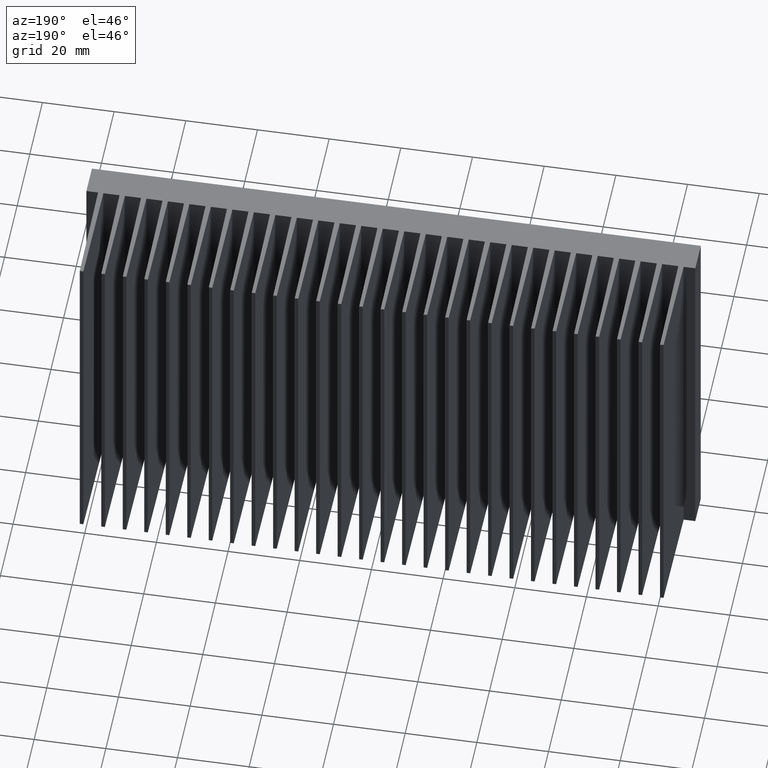
[diagram: clean part render]
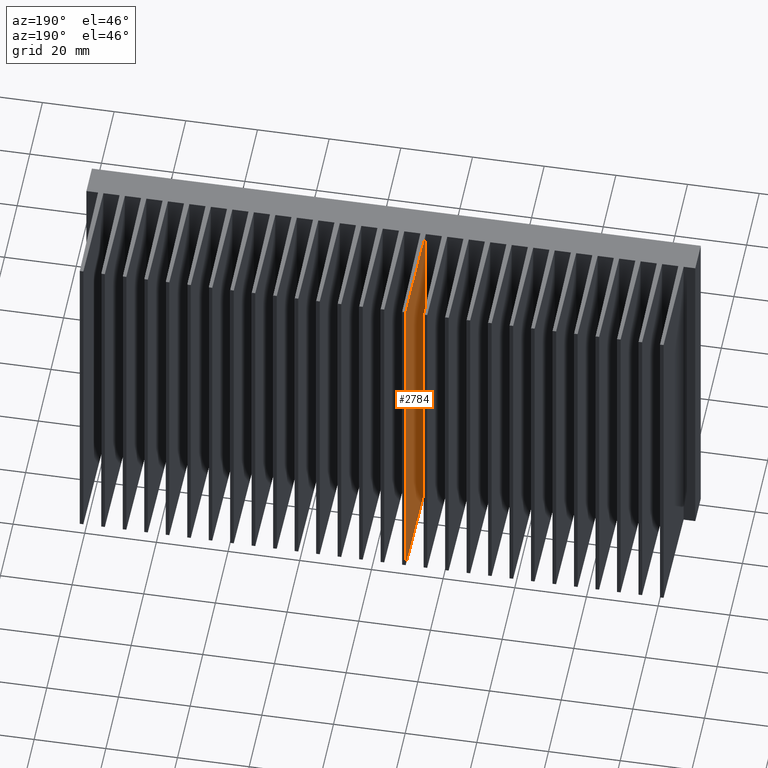
[diagram: same view with one face highlighted and labeled with its STEP entity id]
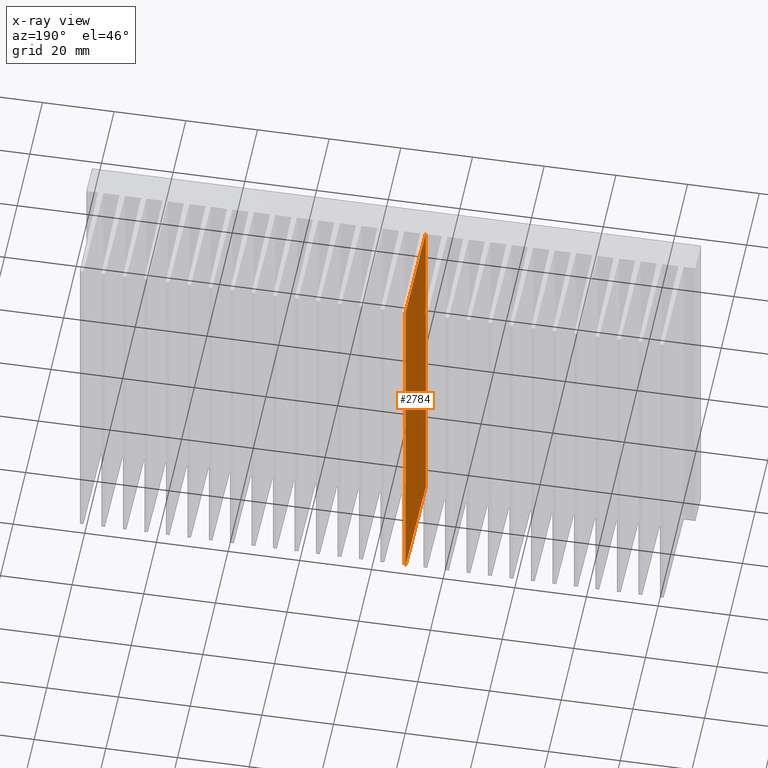
[diagram: x-ray of the same camera — body ghosted, the highlighted face saturated]
A machine part, auxiliary view. The second image highlights one B-rep face of the part: STEP entity #2784.
The next image is the same camera in x-ray: the body ghosted, the highlighted face saturated — about 9% of this face is hidden behind the body in this view.
In plain terms, the highlighted planar face has unit normal (1, -0.0082, 0).
Its self-contained STEP definition (entity closure, byte-faithful):
#143 = PLANE ( 'NONE',  #3297 ) ;
#217 = VERTEX_POINT ( 'NONE', #1792 ) ;
#405 = DIRECTION ( 'NONE',  ( 0.008223406144917910082, 0.9999661872240360738, 0.0000000000000000000 ) ) ;
#562 = DIRECTION ( 'NONE',  ( -0.008223406144917910082, -0.9999661872240359628, 0.0000000000000000000 ) ) ;
#574 = DIRECTION ( 'NONE',  ( 0.9999661872240360738, -0.008223406144917910082, 0.0000000000000000000 ) ) ;
#619 = CARTESIAN_POINT ( 'NONE',  ( -9.493920000000795056, 19.56251200000005852, 100.0000000000000000 ) ) ;
#822 = EDGE_CURVE ( 'NONE', #217, #3837, #2074, .T. ) ;
#929 = CARTESIAN_POINT ( 'NONE',  ( -9.493920000000795056, 19.56251200000005852, 0.0000000000000000000 ) ) ;
#934 = ORIENTED_EDGE ( 'NONE', *, *, #3273, .T. ) ;
#969 = CARTESIAN_POINT ( 'NONE',  ( -9.493920000000795056, 19.56251200000005852, 100.0000000000000000 ) ) ;
#986 = DIRECTION ( 'NONE',  ( -0.008223406144917910082, -0.9999661872240359628, 0.0000000000000000000 ) ) ;
#987 = CARTESIAN_POINT ( 'NONE',  ( -9.743760000000287747, -10.81803199999958487, 100.0000000000000000 ) ) ;
#1277 = ORIENTED_EDGE ( 'NONE', *, *, #1621, .F. ) ;
#1575 = ORIENTED_EDGE ( 'NONE', *, *, #822, .T. ) ;
#1621 = EDGE_CURVE ( 'NONE', #217, #3333, #1722, .T. ) ;
#1722 = LINE ( 'NONE', #619, #1725 ) ;
#1725 = VECTOR ( 'NONE', #562, 1000.000000000000114 ) ;
#1780 = LINE ( 'NONE', #929, #1843 ) ;
#1792 = CARTESIAN_POINT ( 'NONE',  ( -9.493920000000795056, 19.56251200000005852, 100.0000000000000000 ) ) ;
#1843 = VECTOR ( 'NONE', #986, 1000.000000000000114 ) ;
#2074 = LINE ( 'NONE', #969, #2833 ) ;
#2115 = ORIENTED_EDGE ( 'NONE', *, *, #2572, .F. ) ;
#2429 = CARTESIAN_POINT ( 'NONE',  ( -9.743760000000287747, -10.81803199999958487, 100.0000000000000000 ) ) ;
#2557 = VECTOR ( 'NONE', #3342, 1000.000000000000000 ) ;
#2572 = EDGE_CURVE ( 'NONE', #3333, #3873, #2689, .T. ) ;
#2689 = LINE ( 'NONE', #987, #2557 ) ;
#2782 = CARTESIAN_POINT ( 'NONE',  ( -9.493920000000795056, 19.56251200000005852, 0.0000000000000000000 ) ) ;
#2784 = ADVANCED_FACE ( 'NONE', ( #3825 ), #143, .F. ) ;
#2833 = VECTOR ( 'NONE', #3430, 1000.000000000000000 ) ;
#2888 = EDGE_LOOP ( 'NONE', ( #934, #2115, #1277, #1575 ) ) ;
#3151 = CARTESIAN_POINT ( 'NONE',  ( -9.493920000000795056, 19.56251200000005852, 100.0000000000000000 ) ) ;
#3273 = EDGE_CURVE ( 'NONE', #3837, #3873, #1780, .T. ) ;
#3297 = AXIS2_PLACEMENT_3D ( 'NONE', #3151, #574, #405 ) ;
#3333 = VERTEX_POINT ( 'NONE', #2429 ) ;
#3342 = DIRECTION ( 'NONE',  ( -0.0000000000000000000, -0.0000000000000000000, -1.000000000000000000 ) ) ;
#3430 = DIRECTION ( 'NONE',  ( -0.0000000000000000000, -0.0000000000000000000, -1.000000000000000000 ) ) ;
#3590 = CARTESIAN_POINT ( 'NONE',  ( -9.743760000000287747, -10.81803199999958487, 0.0000000000000000000 ) ) ;
#3825 = FACE_OUTER_BOUND ( 'NONE', #2888, .T. ) ;
#3837 = VERTEX_POINT ( 'NONE', #2782 ) ;
#3873 = VERTEX_POINT ( 'NONE', #3590 ) ;